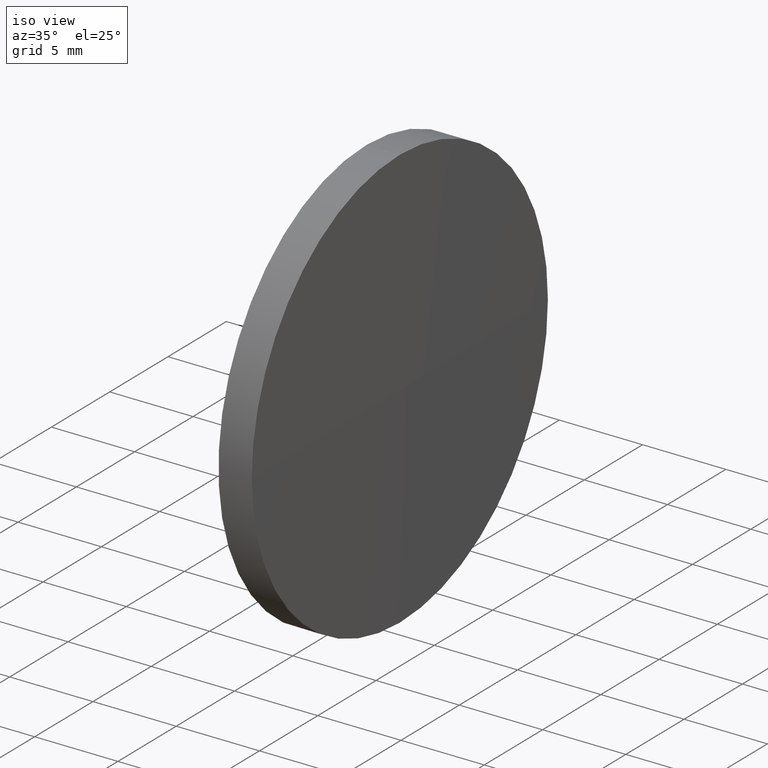
[diagram: clean part render]
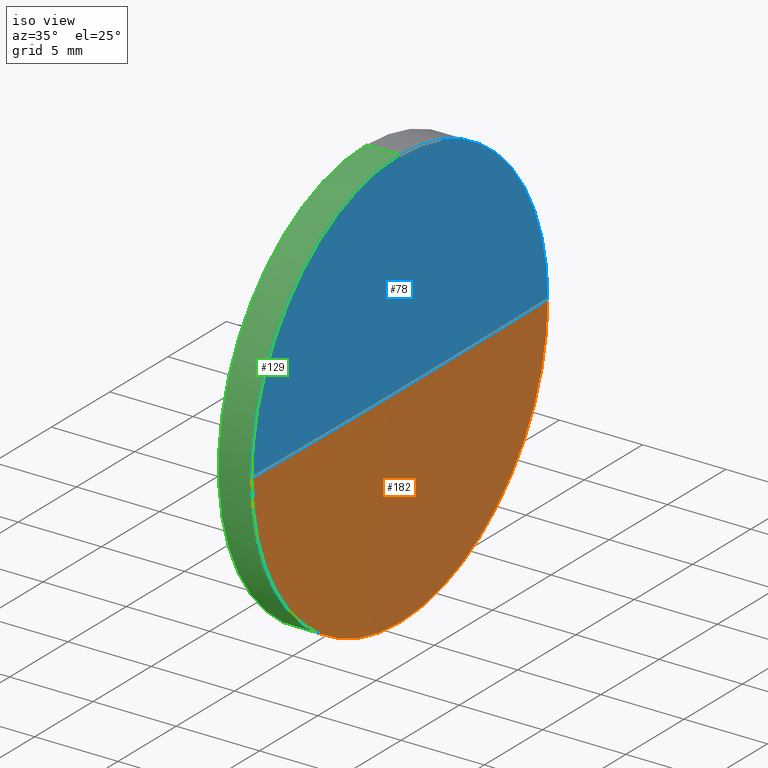
[diagram: same view with three faces highlighted in distinct colors, each labeled with its STEP entity id]
A machine part, iso view with three faces highlighted in distinct colors.
Their STEP definitions:

[orange] entity #182 — the highlighted spherical surface has radius 806.5 mm.
#2 = DIRECTION ( 'NONE',  ( 0.0000000000000000000, 1.000000000000000000, 1.224646799147353500E-016 ) ) ;
#3 = EDGE_CURVE ( 'NONE', #145, #9, #140, .T. ) ;
#7 = AXIS2_PLACEMENT_3D ( 'NONE', #133, #57, #54 ) ;
#9 = VERTEX_POINT ( 'NONE', #15 ) ;
#15 = CARTESIAN_POINT ( 'NONE',  ( 117.7645554762012100, 52.53355492641213000, -1.555301434917037300E-015 ) ) ;
#17 = CIRCLE ( 'NONE', #110, 806.5000000000459300 ) ;
#18 = AXIS2_PLACEMENT_3D ( 'NONE', #116, #131, #53 ) ;
#21 = CARTESIAN_POINT ( 'NONE',  ( 117.7645554762012000, 65.23355492641219700, -12.70000000000000300 ) ) ;
#27 = AXIS2_PLACEMENT_3D ( 'NONE', #144, #132, #155 ) ;
#31 = EDGE_CURVE ( 'NONE', #93, #9, #17, .T. ) ;
#38 = ORIENTED_EDGE ( 'NONE', *, *, #3, .F. ) ;
#40 = CARTESIAN_POINT ( 'NONE',  ( 117.7645554762012000, 65.23355492641219700, 0.0000000000000000000 ) ) ;
#52 = CIRCLE ( 'NONE', #134, 12.70000000000000300 ) ;
#53 = DIRECTION ( 'NONE',  ( 0.0000000000000000000, 0.0000000000000000000, 1.000000000000000000 ) ) ;
#54 = DIRECTION ( 'NONE',  ( 1.000000000000000000, 0.0000000000000000000, 0.0000000000000000000 ) ) ;
#55 = CARTESIAN_POINT ( 'NONE',  ( -688.6354445238448500, 65.23355492641130100, 0.0000000000000000000 ) ) ;
#57 = DIRECTION ( 'NONE',  ( -0.0000000000000000000, 0.0000000000000000000, 1.000000000000000000 ) ) ;
#64 = CIRCLE ( 'NONE', #7, 806.5000000000460400 ) ;
#69 = DIRECTION ( 'NONE',  ( 0.0000000000000000000, 1.224646799147353200E-016, -1.000000000000000000 ) ) ;
#70 = DIRECTION ( 'NONE',  ( -1.000000000000000000, -0.0000000000000000000, -0.0000000000000000000 ) ) ;
#71 = CARTESIAN_POINT ( 'NONE',  ( 117.7645554762012100, 77.93355492641137500, 0.0000000000000000000 ) ) ;
#81 = DIRECTION ( 'NONE',  ( 0.0000000000000000000, 0.0000000000000000000, 1.000000000000000000 ) ) ;
#82 = CARTESIAN_POINT ( 'NONE',  ( 117.8645554762012300, 65.23355492641135800, 0.0000000000000000000 ) ) ;
#87 = ORIENTED_EDGE ( 'NONE', *, *, #89, .F. ) ;
#89 = EDGE_CURVE ( 'NONE', #138, #145, #52, .T. ) ;
#93 = VERTEX_POINT ( 'NONE', #82 ) ;
#100 = FACE_OUTER_BOUND ( 'NONE', #127, .T. ) ;
#110 = AXIS2_PLACEMENT_3D ( 'NONE', #55, #69, #2 ) ;
#111 = ORIENTED_EDGE ( 'NONE', *, *, #31, .T. ) ;
#116 = CARTESIAN_POINT ( 'NONE',  ( 117.7645554762012000, 65.23355492641219700, 0.0000000000000000000 ) ) ;
#119 = ORIENTED_EDGE ( 'NONE', *, *, #130, .F. ) ;
#127 = EDGE_LOOP ( 'NONE', ( #119, #111, #38, #87 ) ) ;
#130 = EDGE_CURVE ( 'NONE', #93, #138, #64, .T. ) ;
#131 = DIRECTION ( 'NONE',  ( -1.000000000000000000, -0.0000000000000000000, -0.0000000000000000000 ) ) ;
#132 = DIRECTION ( 'NONE',  ( -0.0000000000000000000, 0.0000000000000000000, -1.000000000000000000 ) ) ;
#133 = CARTESIAN_POINT ( 'NONE',  ( -688.6354445238448500, 65.23355492641130100, 0.0000000000000000000 ) ) ;
#134 = AXIS2_PLACEMENT_3D ( 'NONE', #40, #70, #81 ) ;
#138 = VERTEX_POINT ( 'NONE', #71 ) ;
#140 = CIRCLE ( 'NONE', #18, 12.70000000000000300 ) ;
#144 = CARTESIAN_POINT ( 'NONE',  ( -688.6354445238448500, 65.23355492641130100, 0.0000000000000000000 ) ) ;
#145 = VERTEX_POINT ( 'NONE', #21 ) ;
#152 = SPHERICAL_SURFACE ( 'NONE', #27, 806.5000000000460400 ) ;
#155 = DIRECTION ( 'NONE',  ( 0.0000000000000000000, 1.000000000000000000, 0.0000000000000000000 ) ) ;
#182 = ADVANCED_FACE ( 'NONE', ( #100 ), #152, .T. ) ;

[blue] entity #78 — the highlighted spherical surface has radius 806.5 mm.
#2 = DIRECTION ( 'NONE',  ( 0.0000000000000000000, 1.000000000000000000, 1.224646799147353500E-016 ) ) ;
#7 = AXIS2_PLACEMENT_3D ( 'NONE', #133, #57, #54 ) ;
#9 = VERTEX_POINT ( 'NONE', #15 ) ;
#13 = EDGE_CURVE ( 'NONE', #137, #138, #101, .T. ) ;
#15 = CARTESIAN_POINT ( 'NONE',  ( 117.7645554762012100, 52.53355492641213000, -1.555301434917037300E-015 ) ) ;
#17 = CIRCLE ( 'NONE', #110, 806.5000000000459300 ) ;
#31 = EDGE_CURVE ( 'NONE', #93, #9, #17, .T. ) ;
#35 = AXIS2_PLACEMENT_3D ( 'NONE', #108, #157, #143 ) ;
#37 = ORIENTED_EDGE ( 'NONE', *, *, #130, .T. ) ;
#54 = DIRECTION ( 'NONE',  ( 1.000000000000000000, 0.0000000000000000000, 0.0000000000000000000 ) ) ;
#55 = CARTESIAN_POINT ( 'NONE',  ( -688.6354445238448500, 65.23355492641130100, 0.0000000000000000000 ) ) ;
#57 = DIRECTION ( 'NONE',  ( -0.0000000000000000000, 0.0000000000000000000, 1.000000000000000000 ) ) ;
#59 = SPHERICAL_SURFACE ( 'NONE', #124, 806.5000000000460400 ) ;
#64 = CIRCLE ( 'NONE', #7, 806.5000000000460400 ) ;
#65 = EDGE_LOOP ( 'NONE', ( #153, #37, #128, #103 ) ) ;
#66 = EDGE_CURVE ( 'NONE', #9, #137, #179, .T. ) ;
#68 = DIRECTION ( 'NONE',  ( -0.0000000000000000000, 0.0000000000000000000, -1.000000000000000000 ) ) ;
#69 = DIRECTION ( 'NONE',  ( 0.0000000000000000000, 1.224646799147353200E-016, -1.000000000000000000 ) ) ;
#71 = CARTESIAN_POINT ( 'NONE',  ( 117.7645554762012100, 77.93355492641137500, 0.0000000000000000000 ) ) ;
#78 = ADVANCED_FACE ( 'NONE', ( #164 ), #59, .T. ) ;
#82 = CARTESIAN_POINT ( 'NONE',  ( 117.8645554762012300, 65.23355492641135800, 0.0000000000000000000 ) ) ;
#85 = CARTESIAN_POINT ( 'NONE',  ( 117.7645554762012000, 65.23355492641219700, 0.0000000000000000000 ) ) ;
#93 = VERTEX_POINT ( 'NONE', #82 ) ;
#95 = DIRECTION ( 'NONE',  ( 0.0000000000000000000, 1.000000000000000000, 0.0000000000000000000 ) ) ;
#101 = CIRCLE ( 'NONE', #35, 12.70000000000000300 ) ;
#103 = ORIENTED_EDGE ( 'NONE', *, *, #66, .F. ) ;
#108 = CARTESIAN_POINT ( 'NONE',  ( 117.7645554762012000, 65.23355492641219700, 0.0000000000000000000 ) ) ;
#110 = AXIS2_PLACEMENT_3D ( 'NONE', #55, #69, #2 ) ;
#124 = AXIS2_PLACEMENT_3D ( 'NONE', #174, #68, #95 ) ;
#128 = ORIENTED_EDGE ( 'NONE', *, *, #13, .F. ) ;
#130 = EDGE_CURVE ( 'NONE', #93, #138, #64, .T. ) ;
#133 = CARTESIAN_POINT ( 'NONE',  ( -688.6354445238448500, 65.23355492641130100, 0.0000000000000000000 ) ) ;
#135 = DIRECTION ( 'NONE',  ( 0.0000000000000000000, 0.0000000000000000000, 1.000000000000000000 ) ) ;
#137 = VERTEX_POINT ( 'NONE', #142 ) ;
#138 = VERTEX_POINT ( 'NONE', #71 ) ;
#142 = CARTESIAN_POINT ( 'NONE',  ( 117.7645554762012000, 65.23355492641219700, 12.70000000000000300 ) ) ;
#143 = DIRECTION ( 'NONE',  ( 0.0000000000000000000, 0.0000000000000000000, 1.000000000000000000 ) ) ;
#153 = ORIENTED_EDGE ( 'NONE', *, *, #31, .F. ) ;
#157 = DIRECTION ( 'NONE',  ( -1.000000000000000000, -0.0000000000000000000, -0.0000000000000000000 ) ) ;
#164 = FACE_OUTER_BOUND ( 'NONE', #65, .T. ) ;
#172 = DIRECTION ( 'NONE',  ( -1.000000000000000000, -0.0000000000000000000, -0.0000000000000000000 ) ) ;
#174 = CARTESIAN_POINT ( 'NONE',  ( -688.6354445238448500, 65.23355492641130100, 0.0000000000000000000 ) ) ;
#179 = CIRCLE ( 'NONE', #180, 12.70000000000000300 ) ;
#180 = AXIS2_PLACEMENT_3D ( 'NONE', #85, #172, #135 ) ;

[green] entity #129 — the highlighted cylindrical surface (partial cylindrical patch) has radius 12.7 mm, axis along (-1, -0, -0).
#1 = ORIENTED_EDGE ( 'NONE', *, *, #150, .F. ) ;
#3 = EDGE_CURVE ( 'NONE', #145, #9, #140, .T. ) ;
#4 = DIRECTION ( 'NONE',  ( -1.000000000000000000, -0.0000000000000000000, -0.0000000000000000000 ) ) ;
#5 = VERTEX_POINT ( 'NONE', #112 ) ;
#6 = CARTESIAN_POINT ( 'NONE',  ( 115.7645554762012000, 65.23355492641219700, 0.0000000000000000000 ) ) ;
#8 = LINE ( 'NONE', #120, #185 ) ;
#9 = VERTEX_POINT ( 'NONE', #15 ) ;
#15 = CARTESIAN_POINT ( 'NONE',  ( 117.7645554762012100, 52.53355492641213000, -1.555301434917037300E-015 ) ) ;
#18 = AXIS2_PLACEMENT_3D ( 'NONE', #116, #131, #53 ) ;
#19 = DIRECTION ( 'NONE',  ( 0.0000000000000000000, 0.0000000000000000000, 1.000000000000000000 ) ) ;
#21 = CARTESIAN_POINT ( 'NONE',  ( 117.7645554762012000, 65.23355492641219700, -12.70000000000000300 ) ) ;
#23 = CIRCLE ( 'NONE', #154, 12.70000000000000300 ) ;
#34 = CYLINDRICAL_SURFACE ( 'NONE', #151, 12.70000000000000300 ) ;
#44 = ORIENTED_EDGE ( 'NONE', *, *, #91, .T. ) ;
#48 = ORIENTED_EDGE ( 'NONE', *, *, #3, .T. ) ;
#49 = VERTEX_POINT ( 'NONE', #118 ) ;
#53 = DIRECTION ( 'NONE',  ( 0.0000000000000000000, 0.0000000000000000000, 1.000000000000000000 ) ) ;
#56 = DIRECTION ( 'NONE',  ( -1.000000000000000000, -0.0000000000000000000, -0.0000000000000000000 ) ) ;
#62 = VECTOR ( 'NONE', #104, 1000.000000000000000 ) ;
#66 = EDGE_CURVE ( 'NONE', #9, #137, #179, .T. ) ;
#79 = FACE_OUTER_BOUND ( 'NONE', #123, .T. ) ;
#85 = CARTESIAN_POINT ( 'NONE',  ( 117.7645554762012000, 65.23355492641219700, 0.0000000000000000000 ) ) ;
#91 = EDGE_CURVE ( 'NONE', #137, #49, #178, .T. ) ;
#98 = ORIENTED_EDGE ( 'NONE', *, *, #114, .F. ) ;
#104 = DIRECTION ( 'NONE',  ( -1.000000000000000000, -0.0000000000000000000, -0.0000000000000000000 ) ) ;
#107 = DIRECTION ( 'NONE',  ( -1.000000000000000000, -0.0000000000000000000, -0.0000000000000000000 ) ) ;
#112 = CARTESIAN_POINT ( 'NONE',  ( 115.7645554762012000, 65.23355492641219700, -12.70000000000000300 ) ) ;
#114 = EDGE_CURVE ( 'NONE', #145, #5, #8, .T. ) ;
#116 = CARTESIAN_POINT ( 'NONE',  ( 117.7645554762012000, 65.23355492641219700, 0.0000000000000000000 ) ) ;
#118 = CARTESIAN_POINT ( 'NONE',  ( 115.7645554762012000, 65.23355492641219700, 12.70000000000000300 ) ) ;
#120 = CARTESIAN_POINT ( 'NONE',  ( 110.1653732284884500, 65.23355492641219700, -12.70000000000000300 ) ) ;
#123 = EDGE_LOOP ( 'NONE', ( #98, #48, #160, #44, #1 ) ) ;
#129 = ADVANCED_FACE ( 'NONE', ( #79 ), #34, .T. ) ;
#131 = DIRECTION ( 'NONE',  ( -1.000000000000000000, -0.0000000000000000000, -0.0000000000000000000 ) ) ;
#135 = DIRECTION ( 'NONE',  ( 0.0000000000000000000, 0.0000000000000000000, 1.000000000000000000 ) ) ;
#136 = CARTESIAN_POINT ( 'NONE',  ( 110.1653732284884500, 65.23355492641219700, 0.0000000000000000000 ) ) ;
#137 = VERTEX_POINT ( 'NONE', #142 ) ;
#140 = CIRCLE ( 'NONE', #18, 12.70000000000000300 ) ;
#142 = CARTESIAN_POINT ( 'NONE',  ( 117.7645554762012000, 65.23355492641219700, 12.70000000000000300 ) ) ;
#145 = VERTEX_POINT ( 'NONE', #21 ) ;
#150 = EDGE_CURVE ( 'NONE', #5, #49, #23, .T. ) ;
#151 = AXIS2_PLACEMENT_3D ( 'NONE', #136, #56, #19 ) ;
#154 = AXIS2_PLACEMENT_3D ( 'NONE', #6, #107, #170 ) ;
#160 = ORIENTED_EDGE ( 'NONE', *, *, #66, .T. ) ;
#170 = DIRECTION ( 'NONE',  ( 0.0000000000000000000, 0.0000000000000000000, 1.000000000000000000 ) ) ;
#172 = DIRECTION ( 'NONE',  ( -1.000000000000000000, -0.0000000000000000000, -0.0000000000000000000 ) ) ;
#175 = CARTESIAN_POINT ( 'NONE',  ( 110.1653732284884500, 65.23355492641219700, 12.70000000000000300 ) ) ;
#178 = LINE ( 'NONE', #175, #62 ) ;
#179 = CIRCLE ( 'NONE', #180, 12.70000000000000300 ) ;
#180 = AXIS2_PLACEMENT_3D ( 'NONE', #85, #172, #135 ) ;
#185 = VECTOR ( 'NONE', #4, 1000.000000000000000 ) ;